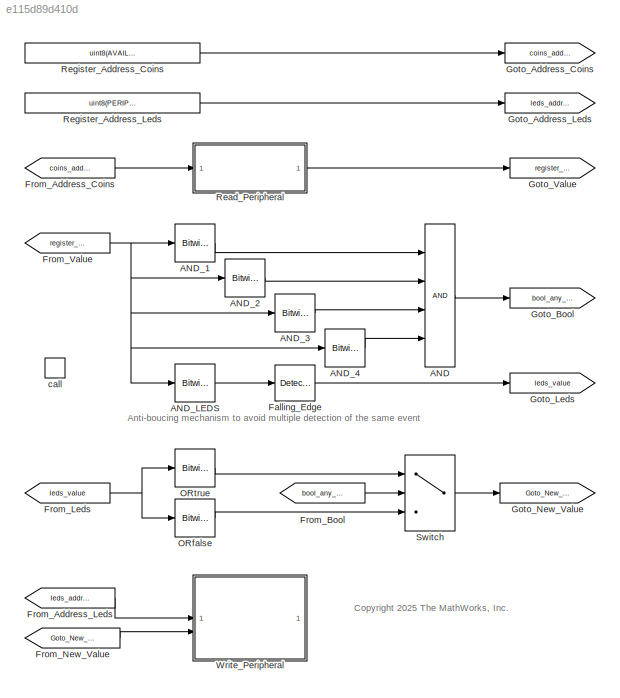
MODEL slx_e115d89d410d
KIND model
CONFIG AbsTol = auto
CONFIG EnableMultiTasking = off
CONFIG FixedStep = auto
CONFIG MaxStep = auto
CONFIG MinStep = auto
CONFIG RelTol = 1e-3
CONFIG SampleTimeConstraint = STIndependent
CONFIG SolverName = FixedStepAuto
CONFIG StartTime = 0.0
CONFIG StopTime = Inf
BLOCK [Logic] AND
  AllPortsSameDT = off
  Inputs = 4
  OutDataTypeStr = boolean
BLOCK [Reference] AND_1  REF=simulink/Logic and Bit
Operations/Bitwise
Operator
  SourceBlock = simulink/Logic and Bit\nOperations/Bitwise\nOperator
  SourceType = Bitwise Operator
BLOCK [Reference] AND_2  REF=simulink/Logic and Bit
Operations/Bitwise
Operator
  SourceBlock = simulink/Logic and Bit\nOperations/Bitwise\nOperator
  SourceType = Bitwise Operator
BLOCK [Reference] AND_3  REF=simulink/Logic and Bit
Operations/Bitwise
Operator
  SourceBlock = simulink/Logic and Bit\nOperations/Bitwise\nOperator
  SourceType = Bitwise Operator
BLOCK [Reference] AND_4  REF=simulink/Logic and Bit
Operations/Bitwise
Operator
  SourceBlock = simulink/Logic and Bit\nOperations/Bitwise\nOperator
  SourceType = Bitwise Operator
BLOCK [Reference] AND_LEDS  REF=simulink/Logic and Bit
Operations/Bitwise
Operator
  SourceBlock = simulink/Logic and Bit\nOperations/Bitwise\nOperator
  SourceType = Bitwise Operator
BLOCK [Reference] Falling_Edge  REF=simulink/Logic and Bit
Operations/Detect
Decrease
  SourceBlock = simulink/Logic and Bit\nOperations/Detect\nDecrease
  SourceType = Detect Decrease
BLOCK [From] From_Address_Coins
  GotoTag = coins_address
BLOCK [From] From_Address_Leds
  GotoTag = leds_address
BLOCK [From] From_Bool
  GotoTag = bool_any_coins
  NameLocation = left
BLOCK [From] From_Leds
  GotoTag = leds_value
BLOCK [From] From_New_Value
  GotoTag = Goto_New_Value
BLOCK [From] From_Value
  GotoTag = register_value
BLOCK [Goto] Goto_Address_Coins
  GotoTag = coins_address
BLOCK [Goto] Goto_Address_Leds
  GotoTag = leds_address
BLOCK [Goto] Goto_Bool
  GotoTag = bool_any_coins
BLOCK [Goto] Goto_Leds
  GotoTag = leds_value
BLOCK [Goto] Goto_New_Value
  GotoTag = Goto_New_Value
BLOCK [Goto] Goto_Value
  GotoTag = register_value
BLOCK [Reference] ORfalse  REF=simulink/Logic and Bit
Operations/Bitwise
Operator
  SourceBlock = simulink/Logic and Bit\nOperations/Bitwise\nOperator
  SourceType = Bitwise Operator
BLOCK [Reference] ORtrue  REF=simulink/Logic and Bit
Operations/Bitwise
Operator
  NameLocation = top
  SourceBlock = simulink/Logic and Bit\nOperations/Bitwise\nOperator
  SourceType = Bitwise Operator
BLOCK [ModelReference] Read_Peripheral
  ModelNameDialog = ReadRegister
  ModelReferenceVersion = 11.3
BLOCK [Constant] Register_Address_Coins
  SampleTime = -1
  Value = uint8(AVAILABLE_COINS_REGISTER)
BLOCK [Constant] Register_Address_Leds
  SampleTime = -1
  Value = uint8(PERIPHERALS_REGISTER)
BLOCK [Switch] Switch
  Criteria = u2 > Threshold
  InputSameDT = off
  SaturateOnIntegerOverflow = off
BLOCK [ModelReference] Write_Peripheral
  ModelNameDialog = WriteRegister
  ModelReferenceVersion = 11.3
BLOCK [TriggerPort] call
  PortDimensions = 1
  StatesWhenEnabling = held
  TriggerSignalSampleTime = [0.001,0]
  TriggerType = function-call
  VariantControl = Variant
ANNOTATION (root): <copyright redacted>
ANNOTATION (root): Anti-boucing mechanism to avoid multiple detection of the same event
LINE AND:1 -> Goto_Bool:1
LINE AND_1:1 -> AND:1
LINE AND_2:1 -> AND:2
LINE AND_3:1 -> AND:3
LINE AND_4:1 -> AND:4
LINE AND_LEDS:1 -> Falling_Edge:1
LINE Falling_Edge:1 -> Goto_Leds:1
LINE From_Address_Coins:1 -> Read_Peripheral:1
LINE From_Address_Leds:1 -> Write_Peripheral:1
LINE From_Bool:1 -> Switch:2
NET From_Leds:1 -> ORfalse:1, ORtrue:1
LINE From_New_Value:1 -> Write_Peripheral:2
NET From_Value:1 -> AND_1:1, AND_2:1, AND_3:1, AND_4:1, AND_LEDS:1
LINE ORfalse:1 -> Switch:3
LINE ORtrue:1 -> Switch:1
LINE Read_Peripheral:1 -> Goto_Value:1
LINE Register_Address_Coins:1 -> Goto_Address_Coins:1
LINE Register_Address_Leds:1 -> Goto_Address_Leds:1
LINE Switch:1 -> Goto_New_Value:1
note: NET lines group one-source signal fan-out (src -> all destinations, sorted); 1:1 wires keep LINE
